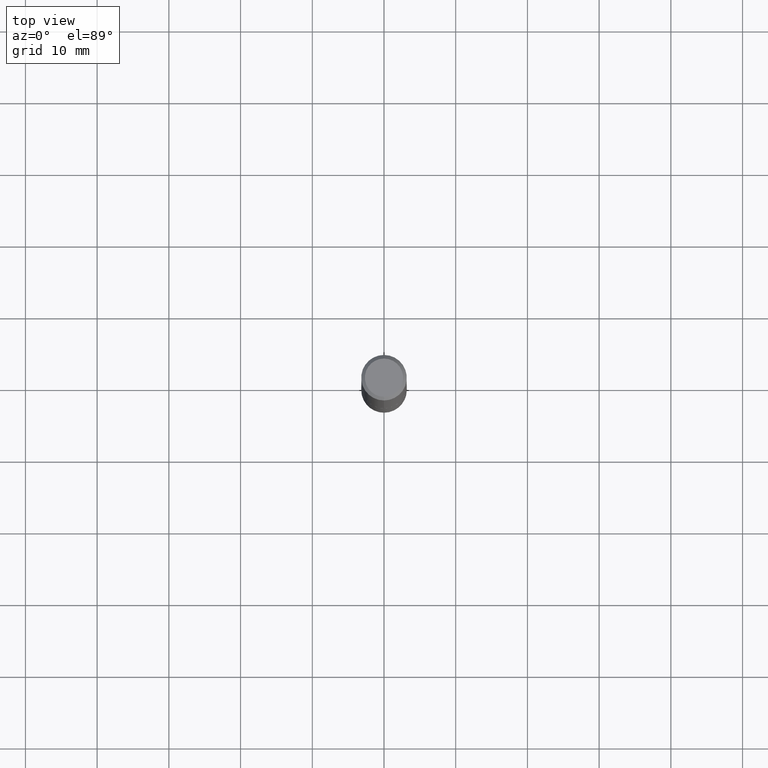
[diagram: clean part render]
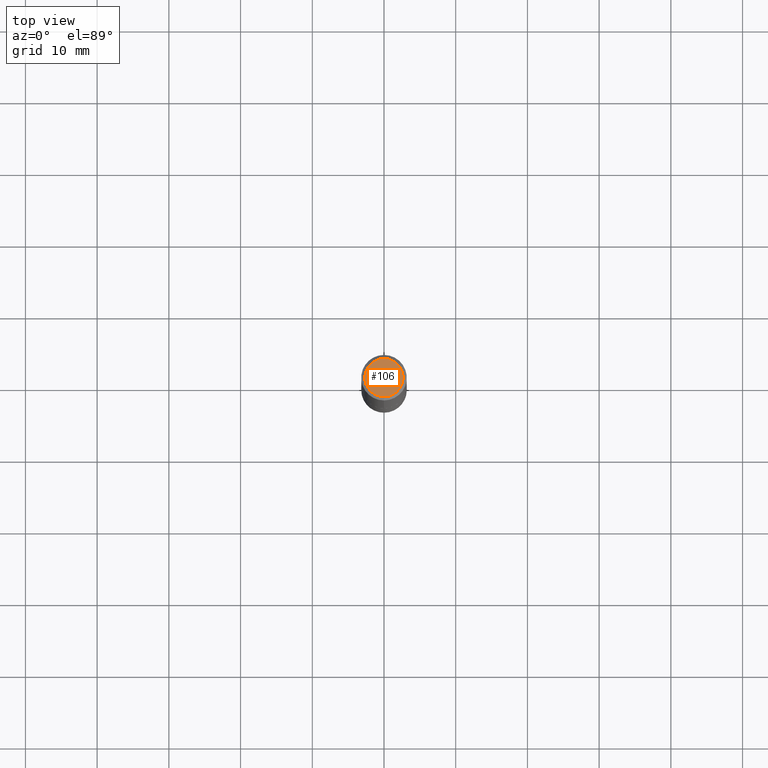
[diagram: same view with one face highlighted and labeled with its STEP entity id]
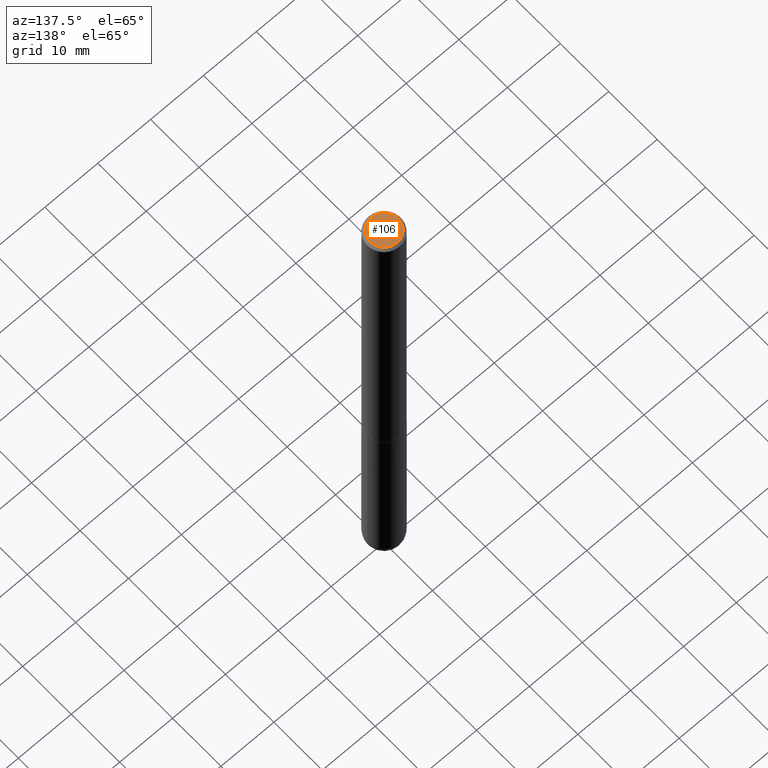
[diagram: same view with one face highlighted and labeled with its STEP entity id]
A machine part, top view. The second image highlights one B-rep face of the part: STEP entity #106.
A second angle (auxiliary view) of the same face is appended — the face is thin or edge-on in the first view.
In plain terms, the highlighted planar face has unit normal (0, -0, -1).
Its self-contained STEP definition (entity closure, byte-faithful):
#1 = CARTESIAN_POINT ( 'NONE',  ( 4.698376246524950803E-45, -6.707010663619730204E-31, -1.921111269502891550E-16 ) ) ;
#24 = CARTESIAN_POINT ( 'NONE',  ( 4.698376246524950803E-45, -6.707010663619730204E-31, -1.921111269502891550E-16 ) ) ;
#42 = FACE_OUTER_BOUND ( 'NONE', #400, .T. ) ;
#62 = DIRECTION ( 'NONE',  ( -6.982962677686265922E-15, -1.000000000000000000, 3.491214054121520398E-15 ) ) ;
#106 = ADVANCED_FACE ( 'NONE', ( #42 ), #157, .F. ) ;
#121 = VERTEX_POINT ( 'NONE', #204 ) ;
#128 = DIRECTION ( 'NONE',  ( 6.982962677686265922E-15, 1.000000000000000000, -3.491214054121520398E-15 ) ) ;
#144 = CIRCLE ( 'NONE', #238, 0.1050000000000002182 ) ;
#157 = PLANE ( 'NONE',  #269 ) ;
#164 = CARTESIAN_POINT ( 'NONE',  ( 8.030407079339215197E-16, 0.1050000000000002182, -5.586886026330495442E-16 ) ) ;
#183 = VERTEX_POINT ( 'NONE', #164 ) ;
#193 = DIRECTION ( 'NONE',  ( -6.982962677686265922E-15, -1.000000000000000000, 3.491214054121520398E-15 ) ) ;
#200 = CIRCLE ( 'NONE', #342, 0.1050000000000002182 ) ;
#204 = CARTESIAN_POINT ( 'NONE',  ( -7.889572697437265083E-16, -0.1050000000000002182, 1.744663487324712343E-16 ) ) ;
#232 = CARTESIAN_POINT ( 'NONE',  ( 7.332110811570594048E-16, 0.1050000000000002182, -4.626330391579049175E-16 ) ) ;
#238 = AXIS2_PLACEMENT_3D ( 'NONE', #1, #412, #62 ) ;
#269 = AXIS2_PLACEMENT_3D ( 'NONE', #232, #293, #128 ) ;
#281 = DIRECTION ( 'NONE',  ( -2.445655450108679082E-29, 3.491214054121520398E-15, 1.000000000000000000 ) ) ;
#293 = DIRECTION ( 'NONE',  ( 2.445655450108678802E-29, -3.491214054121520398E-15, -1.000000000000000000 ) ) ;
#321 = ORIENTED_EDGE ( 'NONE', *, *, #391, .T. ) ;
#338 = EDGE_CURVE ( 'NONE', #183, #121, #144, .T. ) ;
#342 = AXIS2_PLACEMENT_3D ( 'NONE', #24, #281, #193 ) ;
#354 = ORIENTED_EDGE ( 'NONE', *, *, #338, .T. ) ;
#391 = EDGE_CURVE ( 'NONE', #121, #183, #200, .T. ) ;
#400 = EDGE_LOOP ( 'NONE', ( #354, #321 ) ) ;
#412 = DIRECTION ( 'NONE',  ( -2.445655450108679082E-29, 3.491214054121520398E-15, 1.000000000000000000 ) ) ;